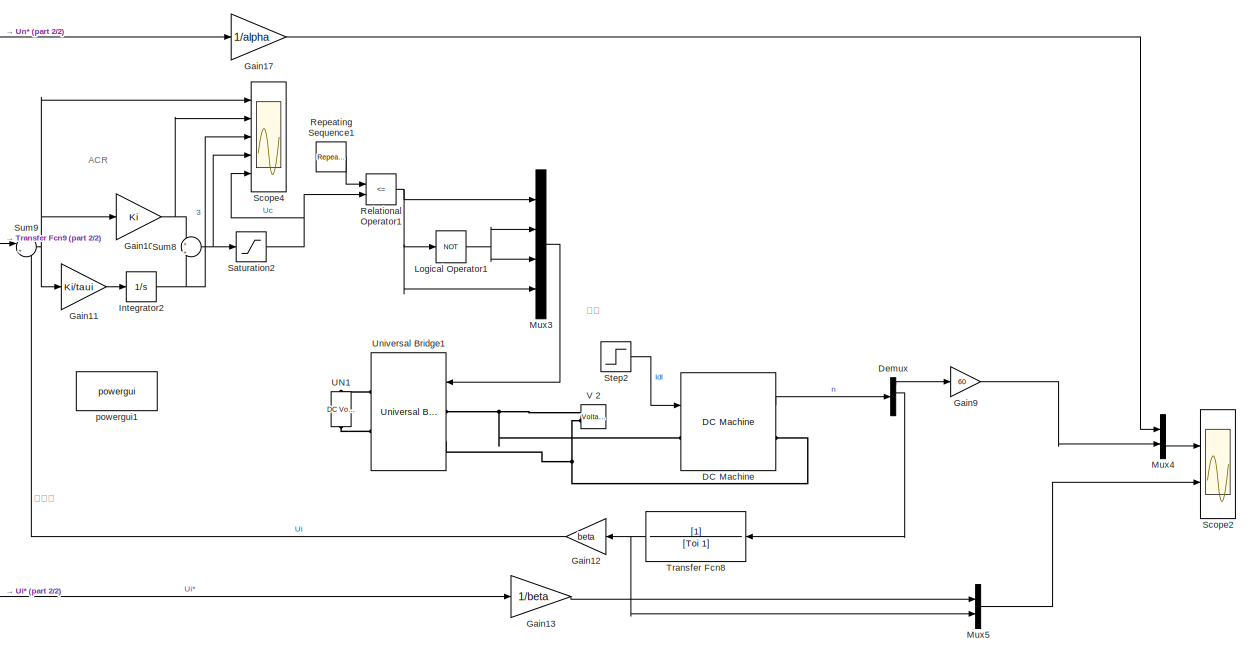
[diagram: root canvas - part 1/2, right side, full height]
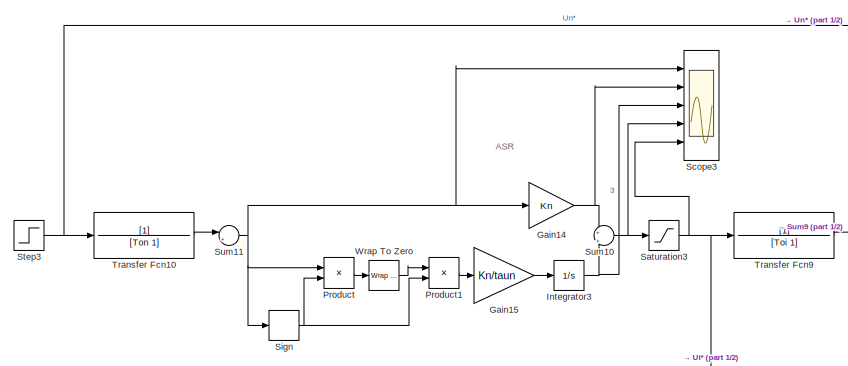
[diagram: root canvas - part 2/2, top left region]
MODEL slx_6655ed3c6b14
KIND model
CONFIG AbsTol = auto
CONFIG EnableMultiTasking = off
CONFIG FixedStep = auto
CONFIG MaxStep = 1e-5
CONFIG MinStep = auto
CONFIG RelTol = 1e-3
CONFIG SampleTimeConstraint = Unconstrained
CONFIG Solver = VariableStepAuto
CONFIG SolverName = VariableStepAuto
CONFIG StartTime = 0.0
CONFIG StopTime = 1
BLOCK [Reference] DC Machine  REF=powerlib/Machines/DC Machine
  Ports = [1, 1, 0, 0, 0, 1, 1]
  SourceBlock = powerlib/Machines/DC Machine
  SourceProductBaseCode = PS
  SourceProductName = Simscape Power Systems
  SourceType = DC machine
BLOCK [Demux] Demux
  DisplayOption = bar
  Ports = [1, 4]
BLOCK [Gain] Gain10
  Gain = Ki
  OutDataTypeStr = Inherit: Inherit via internal rule
  ParamDataTypeStr = Inherit: Inherit via internal rule
  SaturateOnIntegerOverflow = off
BLOCK [Gain] Gain11
  Gain = Ki/taui
  OutDataTypeStr = Inherit: Inherit via internal rule
  ParamDataTypeStr = Inherit: Inherit via internal rule
  SaturateOnIntegerOverflow = off
BLOCK [Gain] Gain12
  Gain = beta
  OutDataTypeStr = Inherit: Inherit via internal rule
  ParamDataTypeStr = Inherit: Inherit via internal rule
  SaturateOnIntegerOverflow = off
BLOCK [Gain] Gain13
  Gain = 1/beta
  OutDataTypeStr = Inherit: Inherit via internal rule
  ParamDataTypeStr = Inherit: Inherit via internal rule
  SaturateOnIntegerOverflow = off
BLOCK [Gain] Gain14
  Gain = Kn
  OutDataTypeStr = Inherit: Inherit via internal rule
  ParamDataTypeStr = Inherit: Inherit via internal rule
  SaturateOnIntegerOverflow = off
BLOCK [Gain] Gain15
  Gain = Kn/taun
  OutDataTypeStr = Inherit: Inherit via internal rule
  ParamDataTypeStr = Inherit: Inherit via internal rule
  SaturateOnIntegerOverflow = off
BLOCK [Gain] Gain17
  Gain = 1/alpha
  OutDataTypeStr = Inherit: Inherit via internal rule
  ParamDataTypeStr = Inherit: Inherit via internal rule
  SaturateOnIntegerOverflow = off
BLOCK [Gain] Gain9
  Gain = 60
  OutDataTypeStr = Inherit: Inherit via internal rule
  ParamDataTypeStr = Inherit: Inherit via internal rule
  SaturateOnIntegerOverflow = off
BLOCK [Integrator] Integrator2
  LimitOutput = on
  LowerSaturationLimit = -12
  Ports = [1, 1]
  UpperSaturationLimit = 12
BLOCK [Integrator] Integrator3
  LimitOutput = on
  LowerSaturationLimit = -12
  Ports = [1, 1]
  UpperSaturationLimit = 12
BLOCK [Logic] Logical Operator1
  AllPortsSameDT = off
  Operator = NOT
  OutDataTypeStr = boolean
  Ports = [1, 1]
BLOCK [Mux] Mux3
  DisplayOption = bar
  Ports = [4, 1]
BLOCK [Mux] Mux4
  DisplayOption = bar
  Inputs = 2
  Ports = [2, 1]
BLOCK [Mux] Mux5
  DisplayOption = bar
  Inputs = 2
  Ports = [2, 1]
BLOCK [Product] Product
  InputSameDT = off
  OutDataTypeStr = Inherit: Inherit via internal rule
  Ports = [2, 1]
  RndMeth = Floor
  SaturateOnIntegerOverflow = off
BLOCK [Product] Product1
  InputSameDT = off
  OutDataTypeStr = Inherit: Inherit via internal rule
  Ports = [2, 1]
  RndMeth = Floor
  SaturateOnIntegerOverflow = off
BLOCK [RelationalOperator] Relational Operator1
  InputSameDT = off
  Operator = <=
  OutDataTypeStr = boolean
  Ports = [2, 1]
  RndMeth = Simplest
BLOCK [Reference] Repeating Sequence1  REF=simulink/Sources/Repeating
Sequence
  Ports = [0, 1]
  SourceBlock = simulink/Sources/Repeating\nSequence
  SourceProductBaseCode = SL
  SourceProductName = Simulink
  SourceType = Repeating table
BLOCK [Saturate] Saturation2
  InputPortMap = u0
  LowerLimit = -10
  Ports = [1, 1]
  UpperLimit = 10
BLOCK [Saturate] Saturation3
  InputPortMap = u0
  LowerLimit = -10
  Ports = [1, 1]
  UpperLimit = 10
BLOCK [Scope] Scope2
  Floating = off
  NumInputPorts = 2
  Ports = [2]
  ScopeSpecificationString = Simulink.scopes.TimeScopeBlockCfg('CurrentConfiguration', extmgr.ConfigurationSet(extmgr.Configuration('Core','General UI',true),extmgr.Configuration('Core','Source UI',true),extmgr.Configuration('Sources','WiredSimulink',true,'DataLoggingVariableName','ScopeData2'),extmgr.Configuration('Visuals','Time Domain',true,'SerializedDisplays',{struct('MinYLimReal','-26.28126','MaxYLimReal','25.1472','YLa...<+2044ch>
BLOCK [Scope] Scope3
  Floating = off
  NumInputPorts = 5
  Ports = [5]
  ScopeSpecificationString = Simulink.scopes.TimeScopeBlockCfg('CurrentConfiguration', extmgr.ConfigurationSet(extmgr.Configuration('Core','General UI',true),extmgr.Configuration('Core','Source UI',true),extmgr.Configuration('Sources','WiredSimulink',true,'DataLoggingVariableName','ScopeData3'),extmgr.Configuration('Visuals','Time Domain',true,'SerializedDisplays',{struct('MinYLimReal','-1.88182','MaxYLimReal','16.93636','YLa...<+1817ch>
BLOCK [Scope] Scope4
  Floating = off
  NumInputPorts = 5
  Ports = [5]
  ScopeSpecificationString = Simulink.scopes.TimeScopeBlockCfg('CurrentConfiguration', extmgr.ConfigurationSet(extmgr.Configuration('Core','General UI',true),extmgr.Configuration('Core','Source UI',true),extmgr.Configuration('Sources','WiredSimulink',true,'DataLoggingVariableName','ScopeData4'),extmgr.Configuration('Visuals','Time Domain',true,'SerializedDisplays',{struct('MinYLimReal','-5.66811','MaxYLimReal','16.6304','YLab...<+1829ch>
BLOCK [Signum] Sign
BLOCK [Step] Step2
  After = IdN
  SampleTime = 0
  Time = 0.1
BLOCK [Step] Step3
  SampleTime = 0
  Time = 0.1
BLOCK [Sum] Sum10
  IconShape = round
  InputSameDT = off
  Inputs = +|+
  OutDataTypeStr = Inherit: Inherit via internal rule
  Ports = [2, 1]
  SaturateOnIntegerOverflow = off
BLOCK [Sum] Sum11
  IconShape = round
  InputSameDT = off
  Inputs = |+-
  OutDataTypeStr = Inherit: Inherit via internal rule
  Ports = [2, 1]
  SaturateOnIntegerOverflow = off
BLOCK [Sum] Sum8
  IconShape = round
  InputSameDT = off
  Inputs = +|+
  OutDataTypeStr = Inherit: Inherit via internal rule
  Ports = [2, 1]
  SaturateOnIntegerOverflow = off
BLOCK [Sum] Sum9
  IconShape = round
  InputSameDT = off
  Inputs = |+-
  OutDataTypeStr = Inherit: Inherit via internal rule
  Ports = [2, 1]
  SaturateOnIntegerOverflow = off
BLOCK [TransferFcn] Transfer Fcn10
  Denominator = [Ton 1]
BLOCK [TransferFcn] Transfer Fcn8
  Denominator = [Toi 1]
BLOCK [TransferFcn] Transfer Fcn9
  Denominator = [Toi 1]
BLOCK [Reference] UN1  REF=powerlib/Electrical
Sources/DC Voltage Source
  Ports = [0, 0, 0, 0, 0, 1, 1]
  SourceBlock = powerlib/Electrical\nSources/DC Voltage Source
  SourceProductBaseCode = PS
  SourceProductName = Simscape Power Systems
  SourceType = DC Voltage Source
BLOCK [Reference] Universal Bridge1  REF=powerlib/Power
Electronics/Universal Bridge
  Ports = [1, 0, 0, 0, 0, 2, 2]
  SourceBlock = powerlib/Power\nElectronics/Universal Bridge
  SourceProductBaseCode = PS
  SourceProductName = Simscape Power Systems
  SourceType = Universal Bridge
BLOCK [Reference] V 2  REF=powerlib/Measurements/Voltage Measurement
  Ports = [0, 1, 0, 0, 0, 2]
  SourceBlock = powerlib/Measurements/Voltage Measurement
  SourceProductBaseCode = PS
  SourceProductName = Simscape Power Systems
  SourceType = Voltage Measurement
  UserDataPersistent = on
BLOCK [Reference] Wrap To Zero  REF=simulink/Discontinuities/Wrap To Zero
  Ports = [1, 1]
  SourceBlock = simulink/Discontinuities/Wrap To Zero
  SourceProductBaseCode = SL
  SourceProductName = Simulink
  SourceType = Wrap To Zero
BLOCK [Reference] powergui1  REF=powerlib/powergui
  Ports = []
  Priority = 1
  SourceBlock = powerlib/powergui
  SourceProductBaseCode = PS
  SourceProductName = Simscape Power Systems
  SourceType = PSB option menu block
ANNOTATION (root): ACR
ANNOTATION (root): ASR
ANNOTATION (root): 电流环
ANNOTATION (root): 负载
LINE DC Machine:1 -> Demux:1
LINE Demux:1 -> Gain9:1
LINE Demux:2 -> Transfer Fcn8:1
NET Gain10:1 -> Scope4:2, Sum8:1
LINE Gain11:1 -> Integrator2:1
LINE Gain12:1 -> Sum9:2
LINE Gain13:1 -> Mux5:1
NET Gain14:1 -> Scope3:2, Sum10:1
LINE Gain15:1 -> Integrator3:1
LINE Gain17:1 -> Mux4:1
LINE Gain9:1 -> Mux4:2
NET Integrator2:1 -> Scope4:3, Sum8:2
NET Integrator3:1 -> Scope3:3, Sum10:2
NET Logical Operator1:1 -> Mux3:2, Mux3:3
LINE Mux3:1 -> Universal Bridge1:1
LINE Mux4:1 -> Scope2:1
LINE Mux5:1 -> Scope2:2
LINE Product1:1 -> Gain15:1
LINE Product:1 -> Wrap To Zero:1
NET Relational Operator1:1 -> Logical Operator1:1, Mux3:1, Mux3:4
LINE Repeating Sequence1:1 -> Relational Operator1:1
NET Saturation2:1 -> Relational Operator1:2, Scope4:5
NET Saturation3:1 -> Gain13:1, Scope3:5, Transfer Fcn9:1
NET Sign:1 -> Product1:2, Product:2
LINE Step2:1 -> DC Machine:1
NET Step3:1 -> Gain17:1, Transfer Fcn10:1
NET Sum10:1 -> Saturation3:1, Scope3:4
NET Sum11:1 -> Gain14:1, Product:1, Scope3:1, Sign:1
NET Sum8:1 -> Saturation2:1, Scope4:4
NET Sum9:1 -> Gain10:1, Gain11:1, Scope4:1
LINE Transfer Fcn10:1 -> Sum11:1
NET Transfer Fcn8:1 -> Gain12:1, Mux5:2
LINE Transfer Fcn9:1 -> Sum9:1
LINE Wrap To Zero:1 -> Product1:1
PNET net1: DC Machine:LConn1 -- Universal Bridge1:LConn1 -- V 2:LConn1
PNET net2: DC Machine:RConn1 -- Universal Bridge1:LConn2 -- V 2:LConn2
PLINE UN1:LConn1 -- Universal Bridge1:RConn2
PLINE UN1:RConn1 -- Universal Bridge1:RConn1
note: NET lines group one-source signal fan-out (src -> all destinations, sorted); 1:1 wires keep LINE; PNET lines group multi-terminal physical nets as a canonical sorted terminal list (undirected conserving connections); 2-terminal nets keep the pairwise PLINE form
